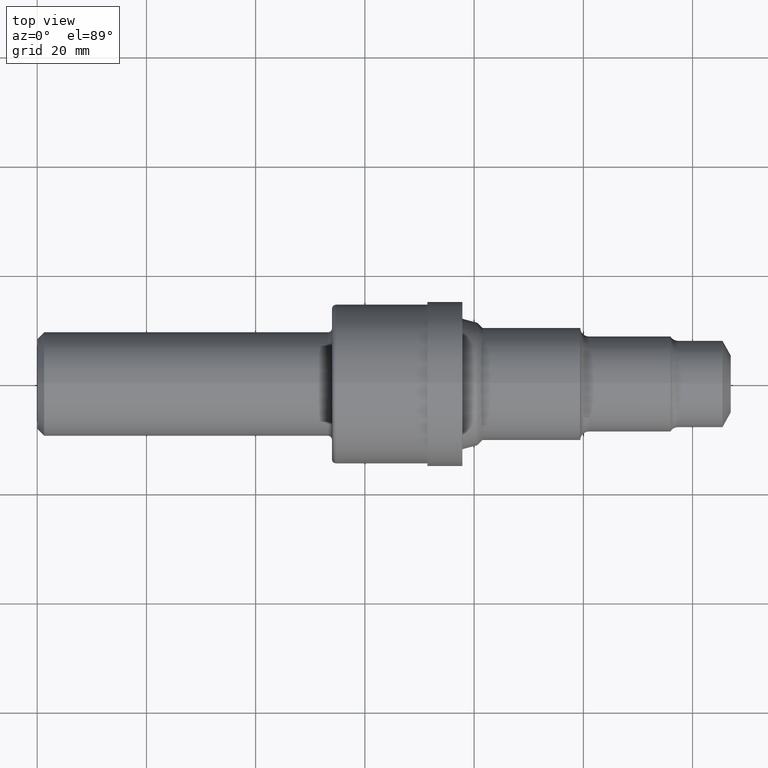
[diagram: clean part render]
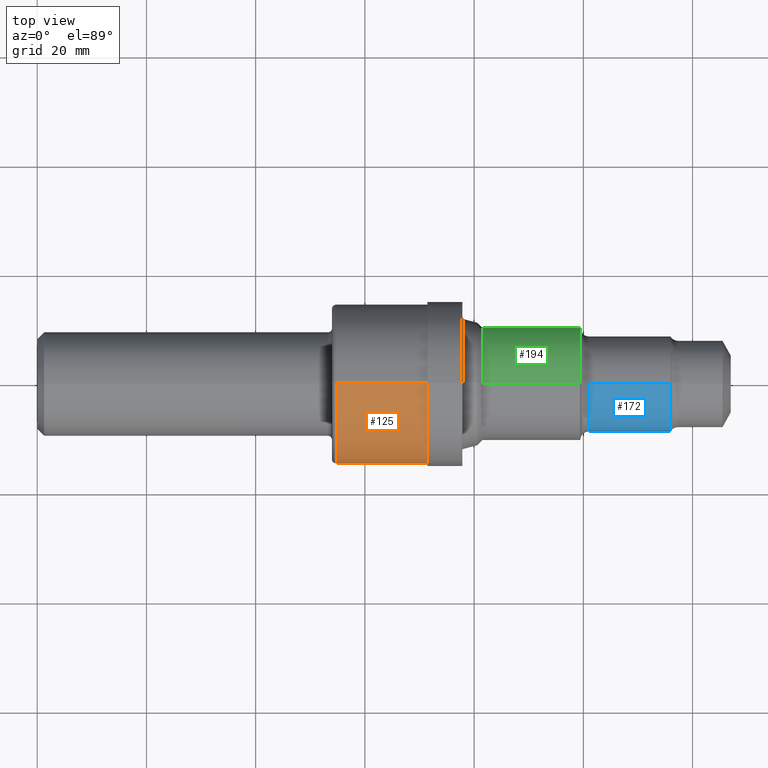
[diagram: same view with three faces highlighted in distinct colors, each labeled with its STEP entity id]
A machine part, top view with three faces highlighted in distinct colors.
Their STEP definitions:

[orange] entity #125 — the highlighted cylindrical surface (partial cylindrical patch) has radius 14.605 mm, axis along (-1, -0, -0).
#14 = AXIS2_PLACEMENT_3D ( 'NONE', #563, #746, #871 ) ;
#27 = CARTESIAN_POINT ( 'NONE',  ( 2.154999999999999805, 7.041719095097280140E-17, -0.5749999999999998446 ) ) ;
#28 = EDGE_CURVE ( 'NONE', #875, #697, #362, .T. ) ;
#34 = CARTESIAN_POINT ( 'NONE',  ( 2.813000000000000167, 0.0000000000000000000, 0.5750000000000000666 ) ) ;
#47 = EDGE_CURVE ( 'NONE', #595, #697, #916, .T. ) ;
#70 = ORIENTED_EDGE ( 'NONE', *, *, #28, .F. ) ;
#99 = DIRECTION ( 'NONE',  ( 0.0000000000000000000, 0.0000000000000000000, 1.000000000000000000 ) ) ;
#125 = ADVANCED_FACE ( 'NONE', ( #688 ), #664, .T. ) ;
#186 = ORIENTED_EDGE ( 'NONE', *, *, #47, .T. ) ;
#229 = CARTESIAN_POINT ( 'NONE',  ( 0.0000000000000000000, 0.0000000000000000000, 0.5749999999999999556 ) ) ;
#285 = ORIENTED_EDGE ( 'NONE', *, *, #682, .F. ) ;
#341 = VECTOR ( 'NONE', #507, 39.37007874015748143 ) ;
#342 = DIRECTION ( 'NONE',  ( -1.000000000000000000, -0.0000000000000000000, -0.0000000000000000000 ) ) ;
#362 = CIRCLE ( 'NONE', #576, 0.5749999999999998446 ) ;
#415 = CARTESIAN_POINT ( 'NONE',  ( 0.0000000000000000000, 7.041719095097280140E-17, -0.5749999999999999556 ) ) ;
#428 = CARTESIAN_POINT ( 'NONE',  ( 2.813000000000000167, 7.041719095097281373E-17, -0.5750000000000000666 ) ) ;
#451 = ORIENTED_EDGE ( 'NONE', *, *, #906, .T. ) ;
#475 = VECTOR ( 'NONE', #872, 39.37007874015748143 ) ;
#492 = CARTESIAN_POINT ( 'NONE',  ( 2.154999999999999805, 0.0000000000000000000, 0.0000000000000000000 ) ) ;
#496 = LINE ( 'NONE', #415, #475 ) ;
#497 = DIRECTION ( 'NONE',  ( -1.000000000000000000, -0.0000000000000000000, -0.0000000000000000000 ) ) ;
#507 = DIRECTION ( 'NONE',  ( -1.000000000000000000, -0.0000000000000000000, -0.0000000000000000000 ) ) ;
#512 = DIRECTION ( 'NONE',  ( 0.0000000000000000000, 0.0000000000000000000, 1.000000000000000000 ) ) ;
#548 = CARTESIAN_POINT ( 'NONE',  ( 2.813000000000000167, 0.0000000000000000000, 0.0000000000000000000 ) ) ;
#563 = CARTESIAN_POINT ( 'NONE',  ( 0.0000000000000000000, 0.0000000000000000000, 0.0000000000000000000 ) ) ;
#576 = AXIS2_PLACEMENT_3D ( 'NONE', #492, #497, #512 ) ;
#595 = VERTEX_POINT ( 'NONE', #34 ) ;
#651 = VERTEX_POINT ( 'NONE', #428 ) ;
#664 = CYLINDRICAL_SURFACE ( 'NONE', #14, 0.5749999999999999556 ) ;
#682 = EDGE_CURVE ( 'NONE', #651, #875, #496, .T. ) ;
#688 = FACE_OUTER_BOUND ( 'NONE', #812, .T. ) ;
#697 = VERTEX_POINT ( 'NONE', #791 ) ;
#746 = DIRECTION ( 'NONE',  ( -1.000000000000000000, -0.0000000000000000000, -0.0000000000000000000 ) ) ;
#791 = CARTESIAN_POINT ( 'NONE',  ( 2.154999999999999805, 0.0000000000000000000, 0.5749999999999998446 ) ) ;
#812 = EDGE_LOOP ( 'NONE', ( #285, #451, #186, #70 ) ) ;
#871 = DIRECTION ( 'NONE',  ( 0.0000000000000000000, 0.0000000000000000000, 1.000000000000000000 ) ) ;
#872 = DIRECTION ( 'NONE',  ( -1.000000000000000000, -0.0000000000000000000, -0.0000000000000000000 ) ) ;
#875 = VERTEX_POINT ( 'NONE', #27 ) ;
#906 = EDGE_CURVE ( 'NONE', #651, #595, #922, .T. ) ;
#916 = LINE ( 'NONE', #229, #341 ) ;
#922 = CIRCLE ( 'NONE', #937, 0.5750000000000000666 ) ;
#937 = AXIS2_PLACEMENT_3D ( 'NONE', #548, #342, #99 ) ;

[blue] entity #172 — the highlighted cylindrical surface (partial cylindrical patch) has radius 8.7478 mm, axis along (-1, -0, -0).
#26 = LINE ( 'NONE', #401, #590 ) ;
#30 = CARTESIAN_POINT ( 'NONE',  ( 3.976998709663992493, 0.0000000000000000000, 0.3443999999999999284 ) ) ;
#44 = DIRECTION ( 'NONE',  ( -1.000000000000000000, -0.0000000000000000000, -0.0000000000000000000 ) ) ;
#86 = ORIENTED_EDGE ( 'NONE', *, *, #283, .F. ) ;
#87 = ORIENTED_EDGE ( 'NONE', *, *, #897, .F. ) ;
#112 = AXIS2_PLACEMENT_3D ( 'NONE', #920, #124, #941 ) ;
#123 = LINE ( 'NONE', #538, #877 ) ;
#124 = DIRECTION ( 'NONE',  ( -1.000000000000000000, -0.0000000000000000000, -0.0000000000000000000 ) ) ;
#172 = ADVANCED_FACE ( 'NONE', ( #636 ), #836, .T. ) ;
#176 = EDGE_CURVE ( 'NONE', #189, #893, #438, .T. ) ;
#189 = VERTEX_POINT ( 'NONE', #355 ) ;
#204 = CARTESIAN_POINT ( 'NONE',  ( 4.565000000000000391, 0.0000000000000000000, 0.0000000000000000000 ) ) ;
#275 = ORIENTED_EDGE ( 'NONE', *, *, #176, .T. ) ;
#283 = EDGE_CURVE ( 'NONE', #432, #508, #578, .T. ) ;
#310 = DIRECTION ( 'NONE',  ( 0.0000000000000000000, 0.0000000000000000000, 1.000000000000000000 ) ) ;
#323 = AXIS2_PLACEMENT_3D ( 'NONE', #442, #881, #310 ) ;
#355 = CARTESIAN_POINT ( 'NONE',  ( 4.565000000000000391, 4.217683576263483488E-17, -0.3443999999999999284 ) ) ;
#379 = CARTESIAN_POINT ( 'NONE',  ( 4.565000000000000391, 0.0000000000000000000, 0.3443999999999999284 ) ) ;
#401 = CARTESIAN_POINT ( 'NONE',  ( 0.0000000000000000000, 0.0000000000000000000, 0.3443999999999999284 ) ) ;
#432 = VERTEX_POINT ( 'NONE', #542 ) ;
#438 = CIRCLE ( 'NONE', #779, 0.3443999999999999284 ) ;
#442 = CARTESIAN_POINT ( 'NONE',  ( 3.976998709663992493, 0.0000000000000000000, 0.0000000000000000000 ) ) ;
#445 = EDGE_CURVE ( 'NONE', #893, #508, #26, .T. ) ;
#508 = VERTEX_POINT ( 'NONE', #30 ) ;
#538 = CARTESIAN_POINT ( 'NONE',  ( 0.0000000000000000000, 4.217683576263483488E-17, -0.3443999999999999284 ) ) ;
#542 = CARTESIAN_POINT ( 'NONE',  ( 3.976998709663992493, 4.594874790400869413E-17, -0.3443999999999999284 ) ) ;
#578 = CIRCLE ( 'NONE', #323, 0.3443999999999999284 ) ;
#590 = VECTOR ( 'NONE', #907, 39.37007874015748143 ) ;
#636 = FACE_OUTER_BOUND ( 'NONE', #690, .T. ) ;
#690 = EDGE_LOOP ( 'NONE', ( #87, #275, #943, #86 ) ) ;
#779 = AXIS2_PLACEMENT_3D ( 'NONE', #204, #44, #888 ) ;
#836 = CYLINDRICAL_SURFACE ( 'NONE', #112, 0.3443999999999999284 ) ;
#857 = DIRECTION ( 'NONE',  ( -1.000000000000000000, -0.0000000000000000000, -0.0000000000000000000 ) ) ;
#877 = VECTOR ( 'NONE', #857, 39.37007874015748143 ) ;
#881 = DIRECTION ( 'NONE',  ( -1.000000000000000000, -0.0000000000000000000, -0.0000000000000000000 ) ) ;
#888 = DIRECTION ( 'NONE',  ( 0.0000000000000000000, 0.0000000000000000000, 1.000000000000000000 ) ) ;
#893 = VERTEX_POINT ( 'NONE', #379 ) ;
#897 = EDGE_CURVE ( 'NONE', #189, #432, #123, .T. ) ;
#907 = DIRECTION ( 'NONE',  ( -1.000000000000000000, -0.0000000000000000000, -0.0000000000000000000 ) ) ;
#920 = CARTESIAN_POINT ( 'NONE',  ( 0.0000000000000000000, 0.0000000000000000000, 0.0000000000000000000 ) ) ;
#941 = DIRECTION ( 'NONE',  ( 0.0000000000000000000, 0.0000000000000000000, 1.000000000000000000 ) ) ;
#943 = ORIENTED_EDGE ( 'NONE', *, *, #445, .T. ) ;

[green] entity #194 — the highlighted cylindrical surface (partial cylindrical patch) has radius 10.3124 mm, axis along (-1, -0, -0).
#20 = FACE_OUTER_BOUND ( 'NONE', #245, .T. ) ;
#52 = CARTESIAN_POINT ( 'NONE',  ( 0.0000000000000000000, 0.0000000000000000000, 0.4060000000000000275 ) ) ;
#88 = CIRCLE ( 'NONE', #733, 0.4060000000000000275 ) ;
#100 = CARTESIAN_POINT ( 'NONE',  ( 0.0000000000000000000, 4.972066004538254721E-17, -0.4060000000000000275 ) ) ;
#118 = CARTESIAN_POINT ( 'NONE',  ( 3.210561487217439502, 0.0000000000000000000, 0.4060000000000000275 ) ) ;
#168 = VERTEX_POINT ( 'NONE', #209 ) ;
#194 = ADVANCED_FACE ( 'NONE', ( #20 ), #205, .T. ) ;
#205 = CYLINDRICAL_SURFACE ( 'NONE', #694, 0.4060000000000000275 ) ;
#209 = CARTESIAN_POINT ( 'NONE',  ( 3.915000000000000036, 4.972066004538254721E-17, -0.4060000000000000275 ) ) ;
#217 = ORIENTED_EDGE ( 'NONE', *, *, #860, .T. ) ;
#238 = VECTOR ( 'NONE', #614, 39.37007874015748143 ) ;
#245 = EDGE_LOOP ( 'NONE', ( #217, #526, #404, #942 ) ) ;
#274 = DIRECTION ( 'NONE',  ( 0.0000000000000000000, 0.0000000000000000000, 1.000000000000000000 ) ) ;
#305 = DIRECTION ( 'NONE',  ( -1.000000000000000000, -0.0000000000000000000, -0.0000000000000000000 ) ) ;
#337 = DIRECTION ( 'NONE',  ( -1.000000000000000000, -0.0000000000000000000, -0.0000000000000000000 ) ) ;
#352 = CARTESIAN_POINT ( 'NONE',  ( 0.0000000000000000000, 0.0000000000000000000, 0.0000000000000000000 ) ) ;
#404 = ORIENTED_EDGE ( 'NONE', *, *, #675, .F. ) ;
#418 = EDGE_CURVE ( 'NONE', #168, #648, #424, .T. ) ;
#422 = DIRECTION ( 'NONE',  ( 0.0000000000000000000, 0.0000000000000000000, 1.000000000000000000 ) ) ;
#424 = LINE ( 'NONE', #100, #238 ) ;
#427 = CARTESIAN_POINT ( 'NONE',  ( 3.915000000000000036, 0.0000000000000000000, 0.0000000000000000000 ) ) ;
#510 = CIRCLE ( 'NONE', #849, 0.4060000000000000275 ) ;
#521 = VECTOR ( 'NONE', #670, 39.37007874015748143 ) ;
#526 = ORIENTED_EDGE ( 'NONE', *, *, #418, .T. ) ;
#596 = EDGE_CURVE ( 'NONE', #758, #793, #720, .T. ) ;
#614 = DIRECTION ( 'NONE',  ( -1.000000000000000000, -0.0000000000000000000, -0.0000000000000000000 ) ) ;
#648 = VERTEX_POINT ( 'NONE', #649 ) ;
#649 = CARTESIAN_POINT ( 'NONE',  ( 3.210561487217439502, 5.202063779998509277E-17, -0.4060000000000000275 ) ) ;
#670 = DIRECTION ( 'NONE',  ( -1.000000000000000000, -0.0000000000000000000, -0.0000000000000000000 ) ) ;
#674 = DIRECTION ( 'NONE',  ( 0.0000000000000000000, 0.0000000000000000000, 1.000000000000000000 ) ) ;
#675 = EDGE_CURVE ( 'NONE', #793, #648, #88, .T. ) ;
#694 = AXIS2_PLACEMENT_3D ( 'NONE', #352, #799, #422 ) ;
#702 = CARTESIAN_POINT ( 'NONE',  ( 3.915000000000000036, 0.0000000000000000000, 0.4060000000000000275 ) ) ;
#720 = LINE ( 'NONE', #52, #521 ) ;
#733 = AXIS2_PLACEMENT_3D ( 'NONE', #741, #305, #274 ) ;
#741 = CARTESIAN_POINT ( 'NONE',  ( 3.210561487217439502, 0.0000000000000000000, 0.0000000000000000000 ) ) ;
#758 = VERTEX_POINT ( 'NONE', #702 ) ;
#793 = VERTEX_POINT ( 'NONE', #118 ) ;
#799 = DIRECTION ( 'NONE',  ( -1.000000000000000000, -0.0000000000000000000, -0.0000000000000000000 ) ) ;
#849 = AXIS2_PLACEMENT_3D ( 'NONE', #427, #337, #674 ) ;
#860 = EDGE_CURVE ( 'NONE', #758, #168, #510, .T. ) ;
#942 = ORIENTED_EDGE ( 'NONE', *, *, #596, .F. ) ;